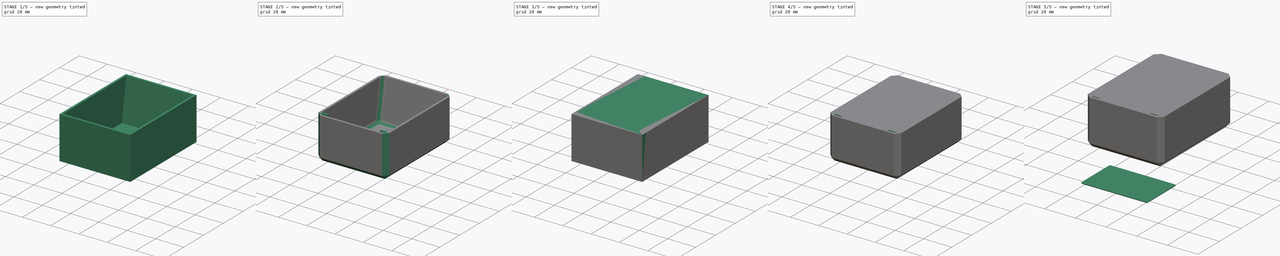
[diagram: build sequence overview — one tinted view per stage of 5, left to right]
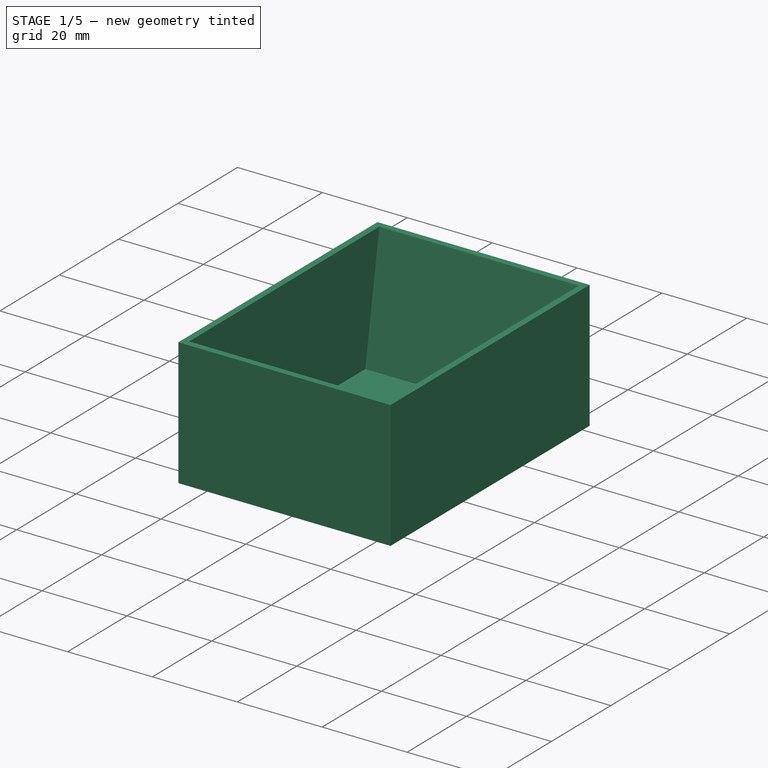
[diagram: stage 1 of 5 — iso view after this stage's code; geometry added in this stage tinted green]
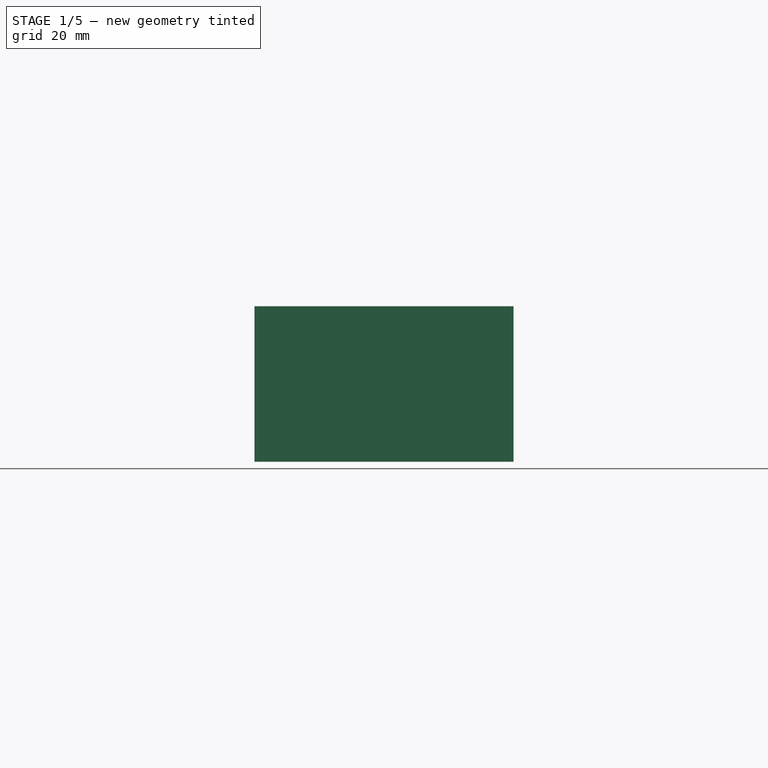
[diagram: stage 1 of 5 — front view after this stage's code; geometry added in this stage tinted green]
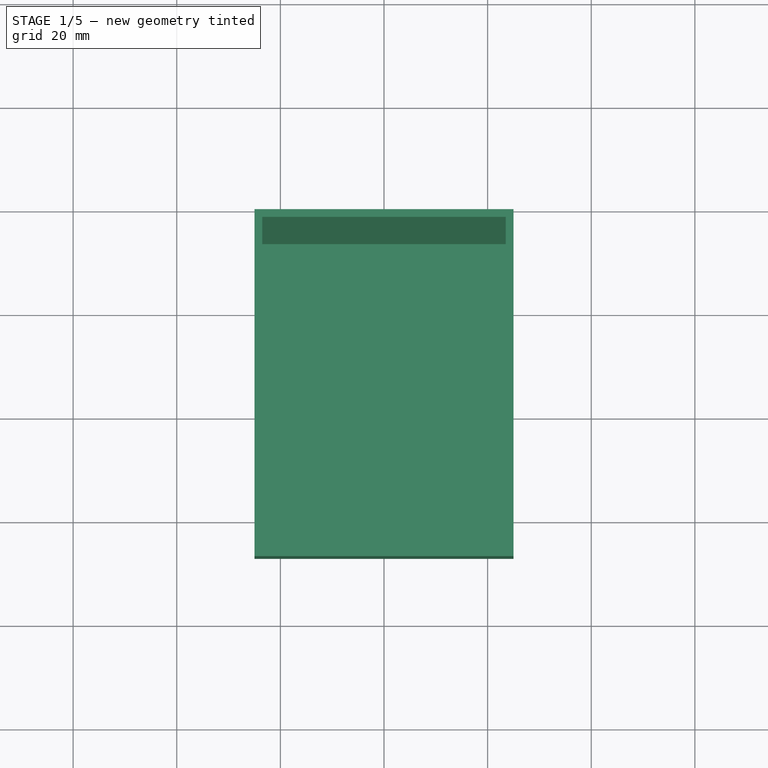
[diagram: stage 1 of 5 — top view after this stage's code; geometry added in this stage tinted green]
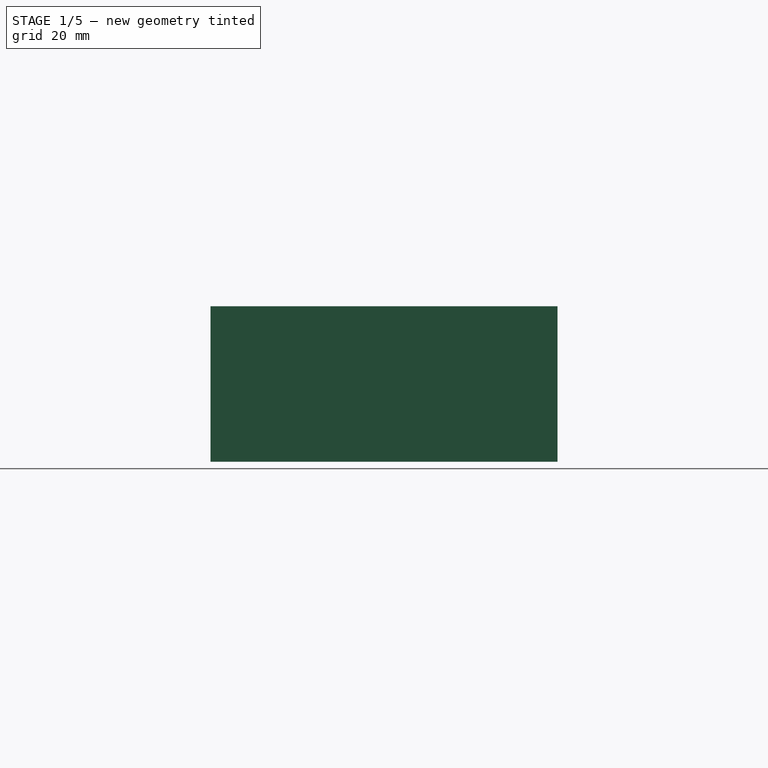
[diagram: stage 1 of 5 — right view after this stage's code; geometry added in this stage tinted green]
FCSTD DOCUMENT  (FreeCAD 0.21R33675 (Git))
Label: rack-part-tray
License: All rights reserved
LicenseURL: http://en.wikipedia.org/wiki/All_rights_reserved
objects: Sketcher::SketchObject×7, PartDesign::Pocket×4, Part::Feature×4, PartDesign::Pad×3, PartDesign::Chamfer×3, PartDesign::Fillet×2, PartDesign::Body×2, Part::Box×1, Part::Fillet×1, Part::Chamfer×1, PartDesign::FeatureBase×1
note: 41 computed .brp shape members not serialized (recipe doc carries the construction recipe); baked Part::Feature solids carry a one-line shape summary decoded from their .brp

FEATURE [Sketcher::SketchObject] Sketch
  FullyConstrained = true
  MapMode = 5
  Support = -> [XY_Plane]
  sketch-geometry (4):
    g0: LineSegment StartX=-25 StartY=0 StartZ=0 EndX=25 EndY=0 EndZ=0
    g1: LineSegment StartX=25 StartY=0 StartZ=0 EndX=25 EndY=-67 EndZ=0
    g2: LineSegment StartX=25 StartY=-67 StartZ=0 EndX=-25 EndY=-67 EndZ=0
    g3: LineSegment StartX=-25 StartY=-67 StartZ=0 EndX=-25 EndY=0 EndZ=0
  constraints (12):
    c: Coincident(g0,g1)
    c: Coincident(g1,g2)
    c: Coincident(g2,g3)
    c: Coincident(g3,g0)
    c: Horizontal(g0)
    c: Horizontal(g2)
    c: Vertical(g1)
    c: Vertical(g3)
    c: PointOnObject(g0,g-1)
    c: DistanceY(g3,g3) = 67
    c: DistanceX(g0,g0) = 50
    c: DistanceX(g0,g-1) = 25
FEATURE [PartDesign::Pad] Pad
  Direction = (0,0,1)
  Length = 30
  Length2 = 10
  Profile = -> Sketch
  ReferenceAxis = -> Sketch [N_Axis]
  Type = 0
FEATURE [Sketcher::SketchObject] Sketch001
  ExternalGeometry = -> [Pad]
  FullyConstrained = true
  MapMode = 5
  Placement = pos=(0,0,0) rot=(0.57735,0.57735,0.57735;2.0944rad)
  Support = -> [YZ_Plane]
  sketch-geometry (3):
    g0: LineSegment StartX=0 StartY=30 StartZ=0 EndX=-5 EndY=0 EndZ=0
    g1: LineSegment StartX=-5 StartY=0 StartZ=0 EndX=0 EndY=0 EndZ=0
    g2: LineSegment StartX=0 StartY=0 StartZ=0 EndX=0 EndY=30 EndZ=0
  constraints (8):
    c: PointOnObject(g0,g-2)
    c: PointOnObject(g0,g-1)
    c: Coincident(g0,g1)
    c: Coincident(g1,g-1)
    c: Coincident(g1,g2)
    c: Coincident(g2,g0)
    c: DistanceY(g0,g-3) = 0
    c: DistanceX(g1,g1) = 5
FEATURE [PartDesign::Pocket] Pocket
  BaseFeature = -> Pad
  Direction = (-1,2e-16,-3e-16)
  Length = 40
  Length2 = 5
  Midplane = true
  Profile = -> Sketch001
  ReferenceAxis = -> Sketch001 [N_Axis]
  Type = 0
FEATURE [Sketcher::SketchObject] Sketch002
  ExternalGeometry = -> [Pocket]
  FullyConstrained = true
  MapMode = 5
  Placement = pos=(0,0,0) rot=(0.57735,0.57735,0.57735;2.0944rad)
  Support = -> [YZ_Plane]
  sketch-geometry (4):
    g0: LineSegment StartX=-65.5 StartY=30 StartZ=0 EndX=-65.5 EndY=1.5 EndZ=0
    g1: LineSegment StartX=-65.5 StartY=1.5 StartZ=0 EndX=-6.25 EndY=1.5 EndZ=0
    g2: LineSegment StartX=-6.25 StartY=1.5 StartZ=0 EndX=-1.5 EndY=30 EndZ=0
    g3: LineSegment StartX=-1.5 StartY=30 StartZ=0 EndX=-65.5 EndY=30 EndZ=0
  constraints (12):
    c: PointOnObject(g0,g-6)
    c: Vertical(g0)
    c: Coincident(g0,g1)
    c: Horizontal(g1)
    c: Coincident(g1,g2)
    c: PointOnObject(g2,g-6)
    c: Coincident(g2,g3)
    c: Coincident(g3,g0)
    c: DistanceX(g-6,g0) = 1.5
    c: DistanceX(g2,g-6) = 1.5
    c: DistanceY(g-3,g0) = 1.5
    c: Parallel(g2,g-7)
FEATURE [PartDesign::Pocket] Pocket001
  BaseFeature = -> Pocket
  Direction = (-1,2e-16,-3e-16)
  Length = 47
  Length2 = 5
  Midplane = true
  Profile = -> Sketch002
  ReferenceAxis = -> Sketch002 [N_Axis]
  Type = 0
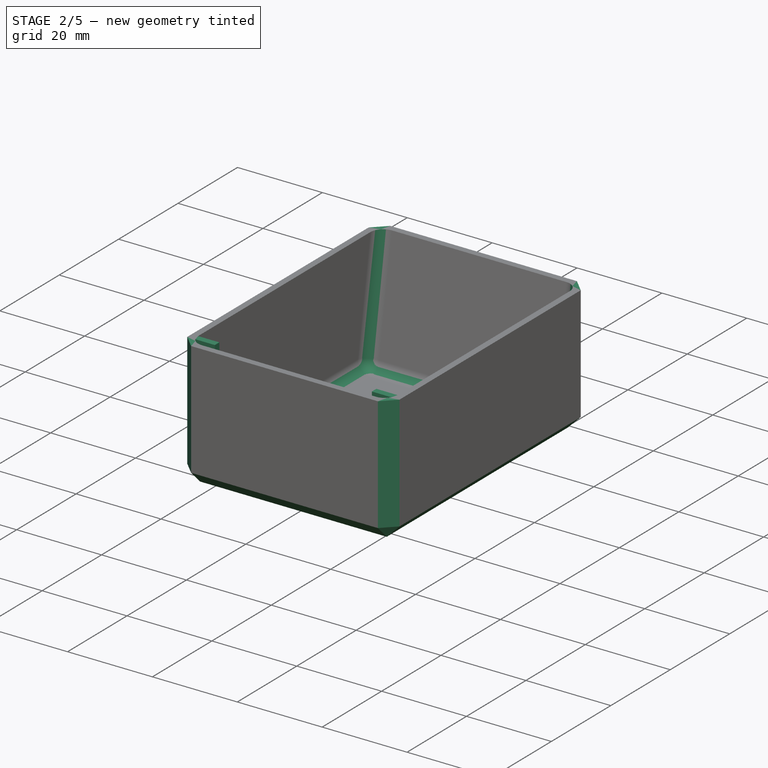
[diagram: stage 2 of 5 — iso view after this stage's code; geometry added in this stage tinted green]
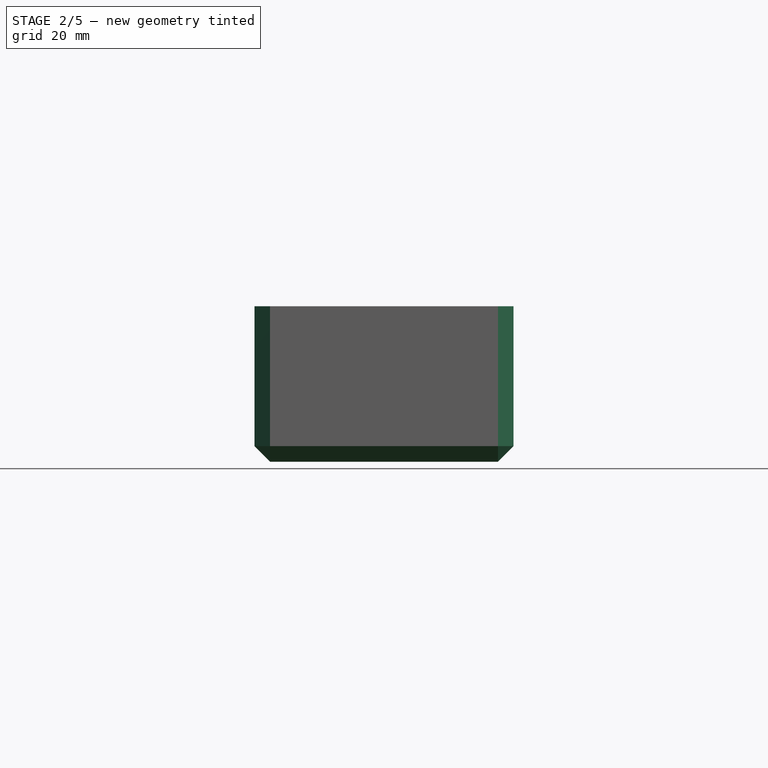
[diagram: stage 2 of 5 — front view after this stage's code; geometry added in this stage tinted green]
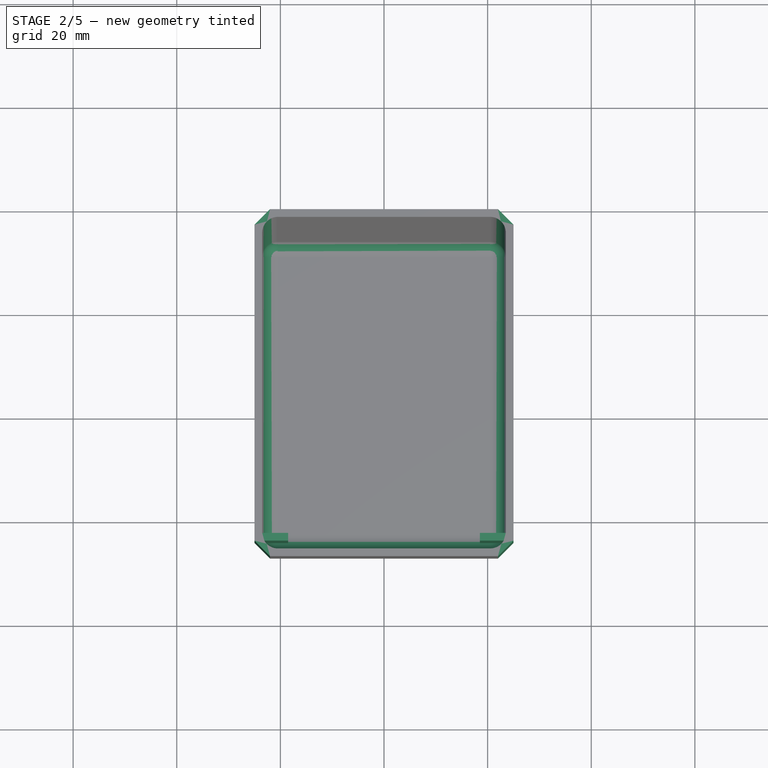
[diagram: stage 2 of 5 — top view after this stage's code; geometry added in this stage tinted green]
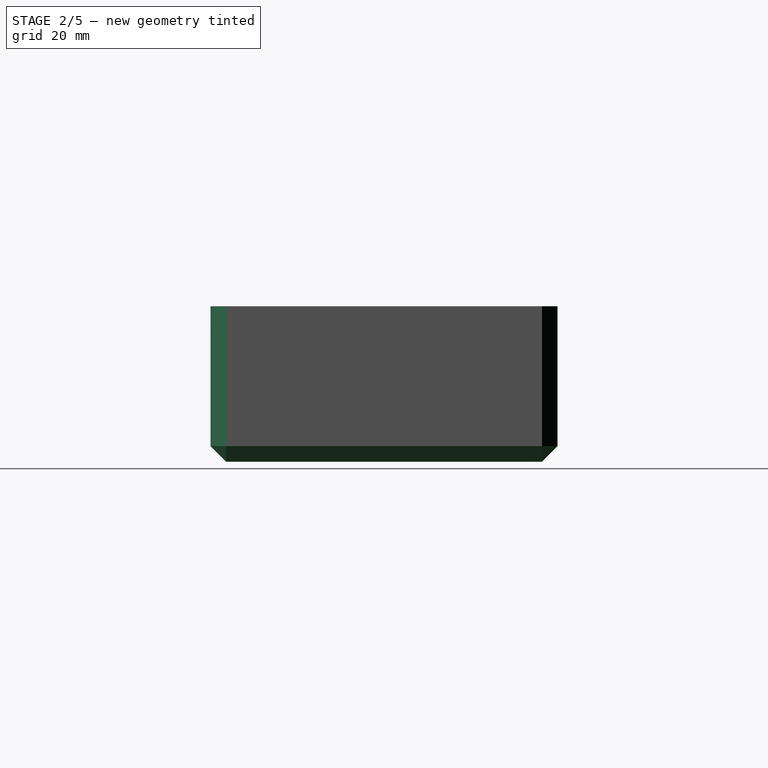
[diagram: stage 2 of 5 — right view after this stage's code; geometry added in this stage tinted green]
FEATURE [PartDesign::Fillet] Fillet
  Base = -> Pocket001 [Edge34,Edge28,Edge33,Edge30,Edge27,Edge32,Edge29,Edge31]
  BaseFeature = -> Pocket001
  Radius = 3
  SupportTransform = false
  UseAllEdges = false
FEATURE [Sketcher::SketchObject] Sketch003
  ExternalGeometry = -> [Fillet]
  FullyConstrained = true
  MapMode = 5
  Placement = pos=(0,0,30) rot=(0,0,1;0rad)
  Support = -> [Fillet]
  sketch-geometry (8):
    g0: LineSegment StartX=-23.5 StartY=-62.5 StartZ=0 EndX=-18.5 EndY=-62.5 EndZ=0
    g1: LineSegment StartX=-18.5 StartY=-62.5 StartZ=0 EndX=-18.5 EndY=-64 EndZ=0
    g2: LineSegment StartX=-18.5 StartY=-64 StartZ=0 EndX=-23.5 EndY=-64 EndZ=0
    g3: LineSegment StartX=-23.5 StartY=-64 StartZ=0 EndX=-23.5 EndY=-62.5 EndZ=0
    g4: LineSegment StartX=23.5 StartY=-64 StartZ=0 EndX=18.5 EndY=-64 EndZ=0
    g5: LineSegment StartX=18.5 StartY=-64 StartZ=0 EndX=18.5 EndY=-62.5 EndZ=0
    g6: LineSegment StartX=18.5 StartY=-62.5 StartZ=0 EndX=23.5 EndY=-62.5 EndZ=0
    g7: LineSegment StartX=23.5 StartY=-62.5 StartZ=0 EndX=23.5 EndY=-64 EndZ=0
  constraints (24):
    c: Coincident(g0,g1)
    c: Coincident(g1,g2)
    c: Coincident(g2,g3)
    c: Coincident(g3,g0)
    c: Horizontal(g0)
    c: Horizontal(g2)
    c: Vertical(g1)
    c: Vertical(g3)
    c: Coincident(g4,g5)
    c: Coincident(g5,g6)
    c: Coincident(g6,g7)
    c: Coincident(g7,g4)
    c: Horizontal(g4)
    c: Horizontal(g6)
    c: Vertical(g5)
    c: Vertical(g7)
    c: Equal(g0,g6)
    c: DistanceY(g5,g5) = 1.5
    c: Equal(g1,g5)
    c: Vertical(g2,g-3)
    c: Vertical(g4,g-4)
    c: DistanceX(g2,g2) = 5
    c: DistanceY(g-6,g1) = 1.5
    c: Horizontal(g1,g4)
FEATURE [PartDesign::Pad] Pad001
  BaseFeature = -> Fillet
  Direction = (0,0,1)
  Length = 10
  Length2 = 10
  Profile = -> Sketch003
  ReferenceAxis = -> Sketch003 [N_Axis]
  Refine = true
  Reversed = true
  Type = 3
  UpToFace = -> Fillet [Face27]
FEATURE [PartDesign::Chamfer] Chamfer
  Angle = 45
  Base = -> Pad001 [Edge13,Edge6,Edge5,Edge12,Edge15,Edge2,Edge11,Edge8,Edge1]
  BaseFeature = -> Pad001
  ChamferType = 0
  FlipDirection = false
  Size = 3
  Size2 = 1
  SupportTransform = false
  UseAllEdges = false
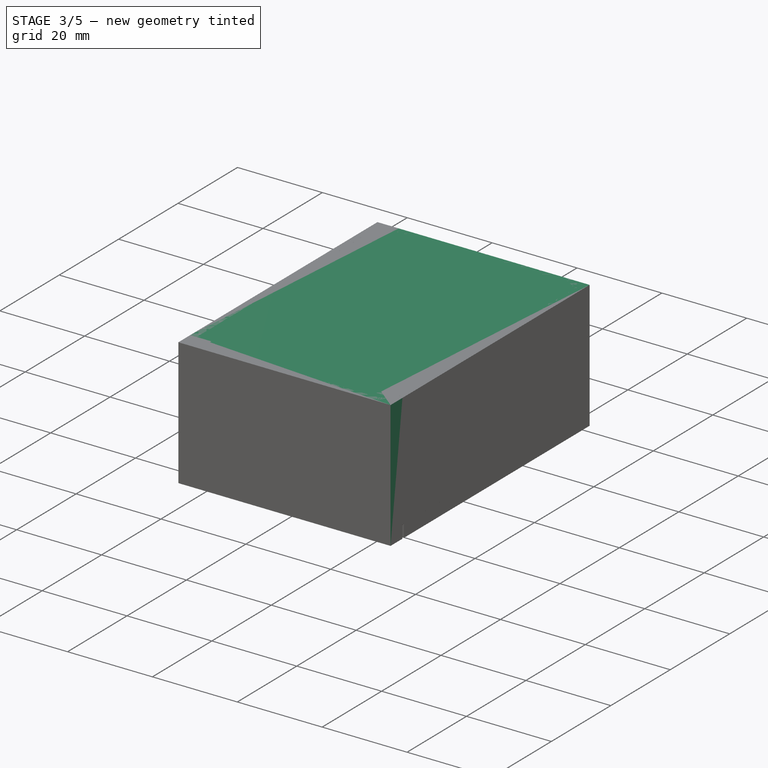
[diagram: stage 3 of 5 — iso view after this stage's code; geometry added in this stage tinted green]
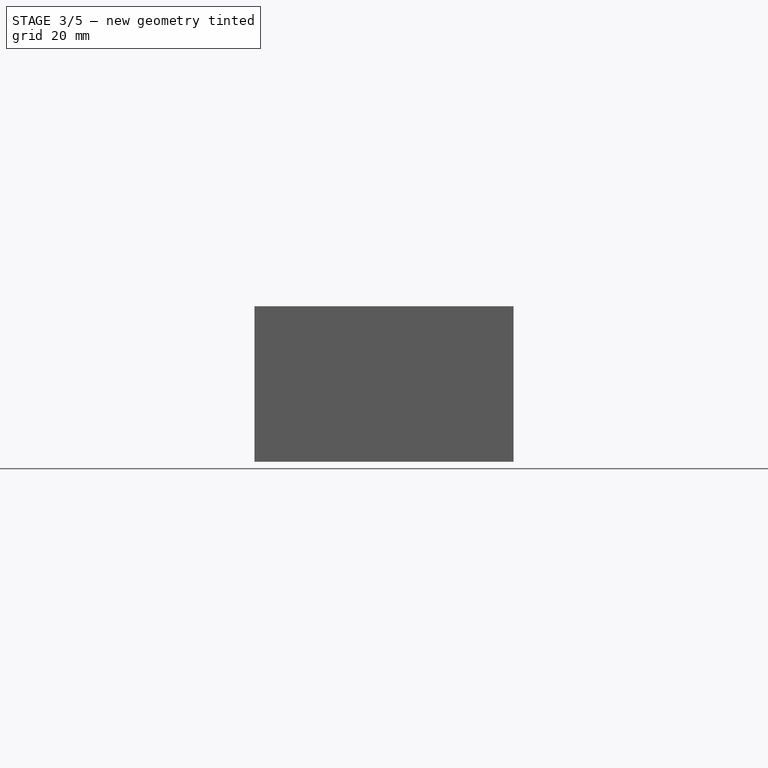
[diagram: stage 3 of 5 — front view after this stage's code; geometry added in this stage tinted green]
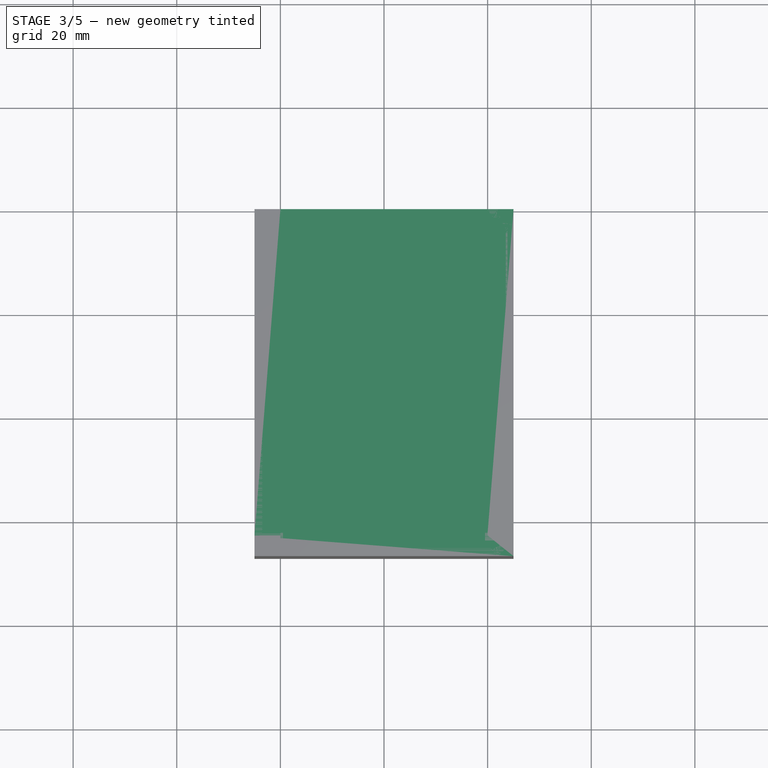
[diagram: stage 3 of 5 — top view after this stage's code; geometry added in this stage tinted green]
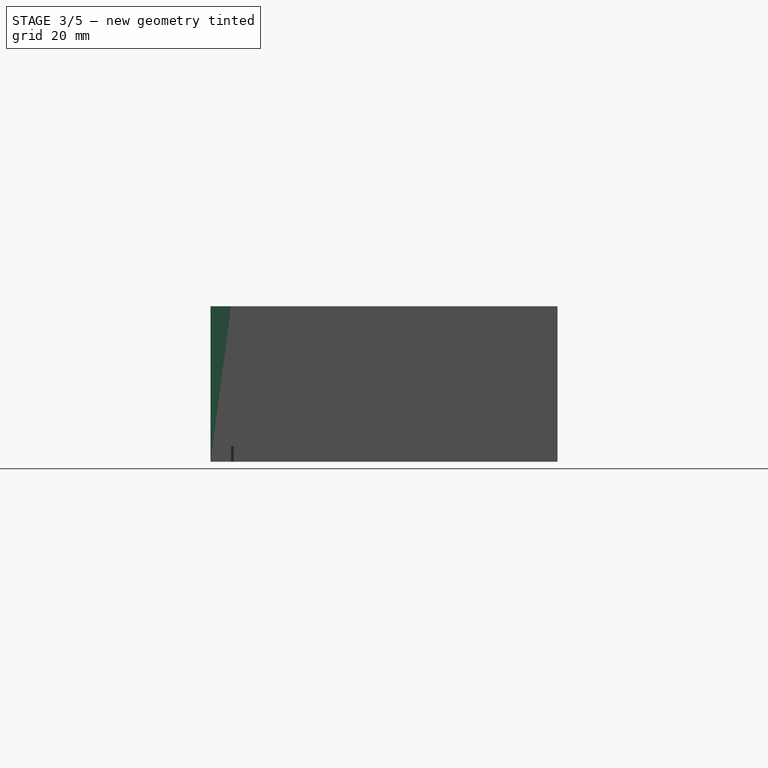
[diagram: stage 3 of 5 — right view after this stage's code; geometry added in this stage tinted green]
FEATURE [PartDesign::FeatureBase] Clone
  BaseFeature = -> Pocket
FEATURE [Sketcher::SketchObject] Sketch005
  ExternalGeometry = -> [Clone]
  FullyConstrained = true
  MapMode = 5
  Placement = pos=(0,0,30) rot=(0,0,1;0rad)
  Support = -> [Clone]
  sketch-geometry (8):
    g0: LineSegment StartX=-25 StartY=-63 StartZ=0 EndX=-20 EndY=-63 EndZ=0
    g1: LineSegment StartX=-20 StartY=-63 StartZ=0 EndX=-20 EndY=-63.5 EndZ=0
    g2: LineSegment StartX=-20 StartY=-63.5 StartZ=0 EndX=-25 EndY=-63.5 EndZ=0
    g3: LineSegment StartX=-25 StartY=-63.5 StartZ=0 EndX=-25 EndY=-63 EndZ=0
    g4: LineSegment StartX=25 StartY=-63 StartZ=0 EndX=20 EndY=-63 EndZ=0
    g5: LineSegment StartX=20 StartY=-63 StartZ=0 EndX=20 EndY=-62.5 EndZ=0
    g6: LineSegment StartX=20 StartY=-62.5 StartZ=0 EndX=25 EndY=-62.5 EndZ=0
    g7: LineSegment StartX=25 StartY=-62.5 StartZ=0 EndX=25 EndY=-63 EndZ=0
  constraints (24):
    c: Coincident(g0,g1)
    c: Coincident(g1,g2)
    c: Coincident(g2,g3)
    c: Coincident(g3,g0)
    c: Horizontal(g0)
    c: Horizontal(g2)
    c: Vertical(g1)
    c: Vertical(g3)
    c: PointOnObject(g0,g-3)
    c: Coincident(g4,g5)
    c: Coincident(g5,g6)
    c: Coincident(g6,g7)
    c: Coincident(g7,g4)
    c: Horizontal(g4)
    c: Horizontal(g6)
    c: Vertical(g5)
    c: Vertical(g7)
    c: PointOnObject(g4,g-4)
    c: Equal(g1,g5)
    c: Equal(g0,g4)
    c: DistanceY(g1,g1) = 0.5
    c: DistanceX(g0,g0) = 5
    c: DistanceY(g-3,g1) = 3.5
    c: Horizontal(g0,g4)
FEATURE [PartDesign::Pocket] Pocket003
  BaseFeature = -> Clone
  Direction = (0,0,-1)
  Length = 5
  Length2 = 5
  Profile = -> Sketch005
  ReferenceAxis = -> Sketch005 [N_Axis]
  Type = 1
FEATURE [PartDesign::Body] Body002  label="vase"
  Group = -> [Clone,Sketch005,Pocket003,Chamfer003,Sketch006,Pocket004,Chamfer004]
  Origin = -> Origin001
  Placement = pos=(-62.5,0,0) rot=(0,0,1;0rad)
  Tip = -> Chamfer004
FEATURE [Part::Feature] Pocket005
  Placement = pos=(-123.5,0,0) rot=(0,0,1;0rad)
  shape: bbox 50 x 67 x 30 mm, 41 faces (baked)
FEATURE [Part::Feature] Pocket006
  Placement = pos=(-189.5,0,0) rot=(0,0,1;0rad)
  shape: bbox 50 x 33.5 x 30 mm, 41 faces (baked)
FEATURE [Sketcher::SketchObject] Sketch007
  ExternalGeometry = -> [Chamfer]
  FullyConstrained = true
  MapMode = 5
  Placement = pos=(-4e-16,3e-16,1.5) rot=(0,0,1;0rad)
  Support = -> [Chamfer]
  sketch-geometry (4):
    g0: LineSegment StartX=-8.5 StartY=-62.5 StartZ=0 EndX=8.5 EndY=-62.5 EndZ=0
    g1: LineSegment StartX=8.5 StartY=-62.5 StartZ=0 EndX=8.5 EndY=-64 EndZ=0
    g2: LineSegment StartX=8.5 StartY=-64 StartZ=0 EndX=-8.5 EndY=-64 EndZ=0
    g3: LineSegment StartX=-8.5 StartY=-64 StartZ=0 EndX=-8.5 EndY=-62.5 EndZ=0
  constraints (12):
    c: Coincident(g0,g1)
    c: Coincident(g1,g2)
    c: Coincident(g2,g3)
    c: Coincident(g3,g0)
    c: Horizontal(g0)
    c: Horizontal(g2)
    c: Vertical(g1)
    c: Vertical(g3)
    c: Horizontal(g-3,g0)
    c: Horizontal(g1,g-5)
    c: DistanceX(g-3,g0) = 10
    c: DistanceX(g0,g-4) = 10
FEATURE [PartDesign::Pad] Pad002
  BaseFeature = -> Chamfer
  Direction = (-3e-16,2e-16,1)
  Length = 5
  Length2 = 10
  Profile = -> Sketch007
  ReferenceAxis = -> Sketch007 [N_Axis]
  Type = 0
FEATURE [PartDesign::Fillet] Fillet002
  Base = -> Pad002 [Edge17,Edge120,Edge116,Edge23]
  BaseFeature = -> Pad002
  Radius = 1
  SupportTransform = false
  UseAllEdges = false
FEATURE [PartDesign::Body] Body  label="solid"
  Group = -> [Sketch,Pad,Sketch001,Pocket,Sketch002,Pocket001,Fillet,Sketch003,Pad001,Chamfer,Sketch007,Pad002,Fillet002]
  Origin = -> Origin
  Tip = -> Fillet002
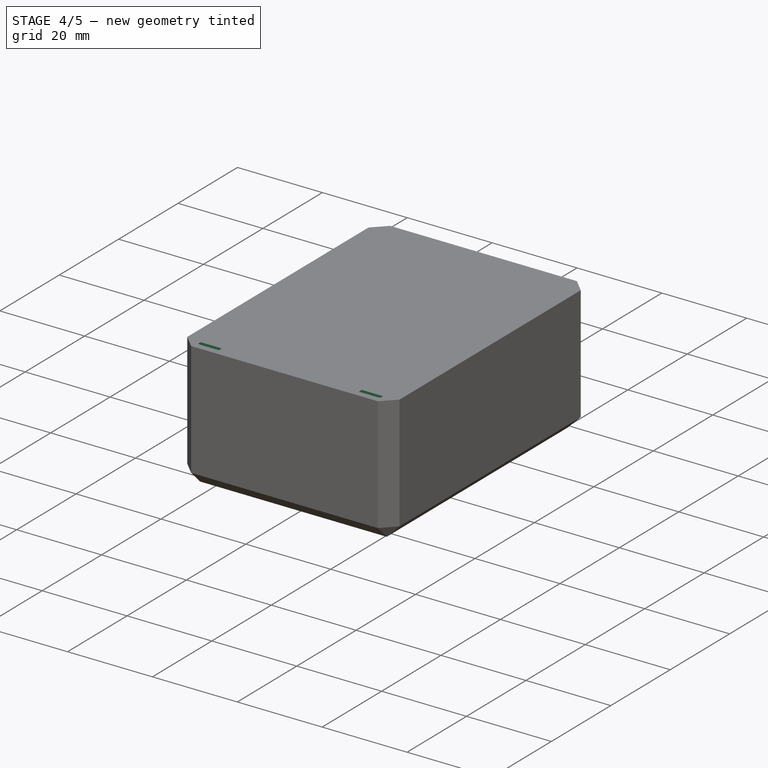
[diagram: stage 4 of 5 — iso view after this stage's code; geometry added in this stage tinted green]
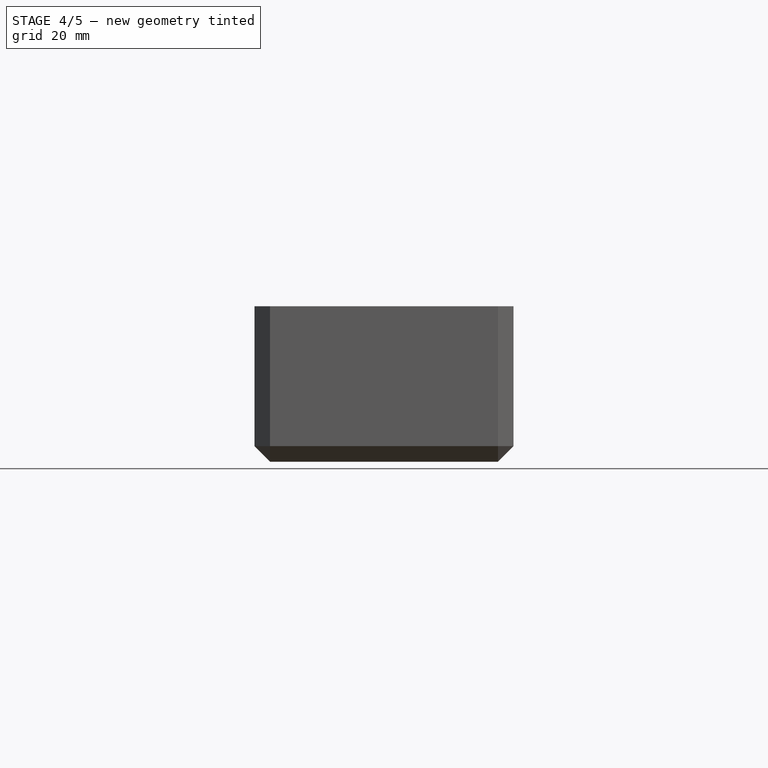
[diagram: stage 4 of 5 — front view after this stage's code; geometry added in this stage tinted green]
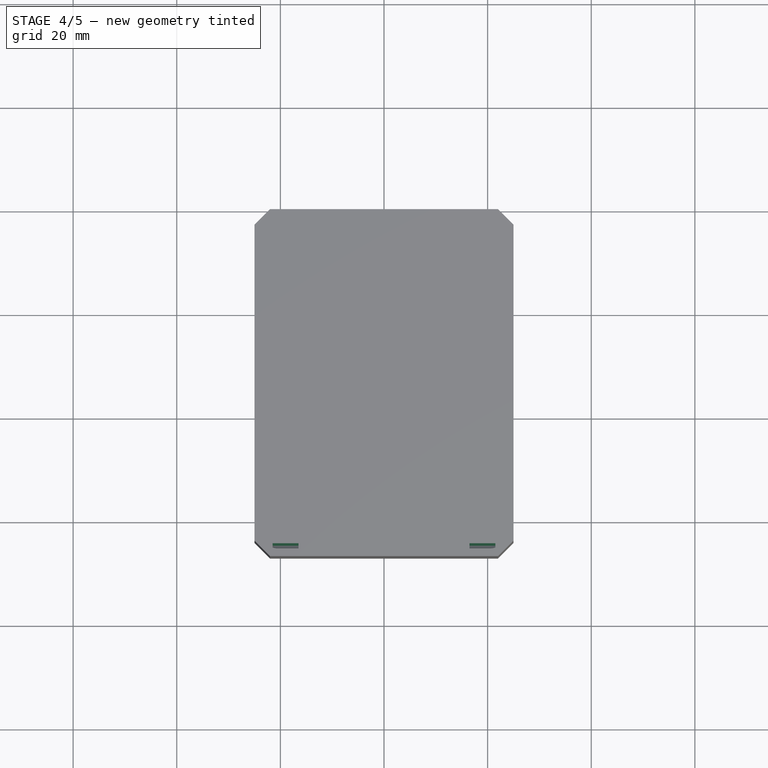
[diagram: stage 4 of 5 — top view after this stage's code; geometry added in this stage tinted green]
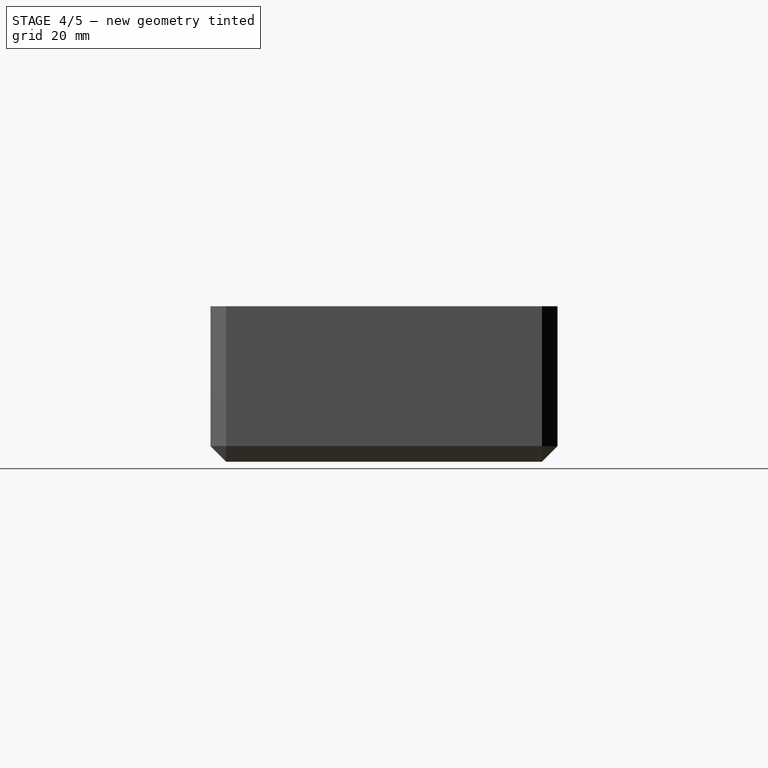
[diagram: stage 4 of 5 — right view after this stage's code; geometry added in this stage tinted green]
FEATURE [PartDesign::Chamfer] Chamfer003
  Angle = 45
  Base = -> Pocket003 [Edge4,Edge19,Edge15,Edge43,Edge14,Edge42,Edge13,Edge9,Edge37,Edge8,Edge1]
  BaseFeature = -> Pocket003
  ChamferType = 0
  FlipDirection = false
  Size = 3
  Size2 = 1
  SupportTransform = false
  UseAllEdges = false
FEATURE [Sketcher::SketchObject] Sketch006
  ExternalGeometry = -> [Chamfer003]
  FullyConstrained = true
  MapMode = 5
  Placement = pos=(0,0,30) rot=(0,0,1;0rad)
  Support = -> [Chamfer003]
  sketch-geometry (8):
    g0: LineSegment StartX=-21.5 StartY=-67 StartZ=0 EndX=-16.5 EndY=-67 EndZ=0
    g1: LineSegment StartX=-16.5 StartY=-67 StartZ=0 EndX=-16.5 EndY=-64.5 EndZ=0
    g2: LineSegment StartX=-16.5 StartY=-64.5 StartZ=0 EndX=-21.5 EndY=-64.5 EndZ=0
    g3: LineSegment StartX=-21.5 StartY=-64.5 StartZ=0 EndX=-21.5 EndY=-67 EndZ=0
    g4: LineSegment StartX=21.5 StartY=-67 StartZ=0 EndX=16.5 EndY=-67 EndZ=0
    g5: LineSegment StartX=16.5 StartY=-67 StartZ=0 EndX=16.5 EndY=-64.5 EndZ=0
    g6: LineSegment StartX=16.5 StartY=-64.5 StartZ=0 EndX=21.5 EndY=-64.5 EndZ=0
    g7: LineSegment StartX=21.5 StartY=-64.5 StartZ=0 EndX=21.5 EndY=-67 EndZ=0
  constraints (24):
    c: Coincident(g0,g1)
    c: Coincident(g1,g2)
    c: Coincident(g2,g3)
    c: Coincident(g3,g0)
    c: Horizontal(g0)
    c: Horizontal(g2)
    c: Vertical(g1)
    c: Vertical(g3)
    c: PointOnObject(g0,g-5)
    c: Coincident(g4,g5)
    c: Coincident(g5,g6)
    c: Coincident(g6,g7)
    c: Coincident(g7,g4)
    c: Horizontal(g4)
    c: Horizontal(g6)
    c: Vertical(g5)
    c: Vertical(g7)
    c: PointOnObject(g4,g-5)
    c: Equal(g3,g5)
    c: Equal(g6,g2)
    c: DistanceY(g1,g1) = 2.5
    c: DistanceX(g-5,g0) = 0.5
    c: DistanceX(g4,g-5) = 0.5
    c: DistanceX(g6,g6) = 5
FEATURE [PartDesign::Pocket] Pocket004
  BaseFeature = -> Chamfer003
  Direction = (0,0,-1)
  Length = 5
  Length2 = 5
  Profile = -> Sketch006
  ReferenceAxis = -> Sketch006 [N_Axis]
  Type = 1
FEATURE [PartDesign::Chamfer] Chamfer004
  Angle = 45
  Base = -> Pocket004 [Edge67,Edge69]
  BaseFeature = -> Pocket004
  ChamferType = 0
  FlipDirection = false
  Size = 1
  Size2 = 1
  SupportTransform = false
  UseAllEdges = false
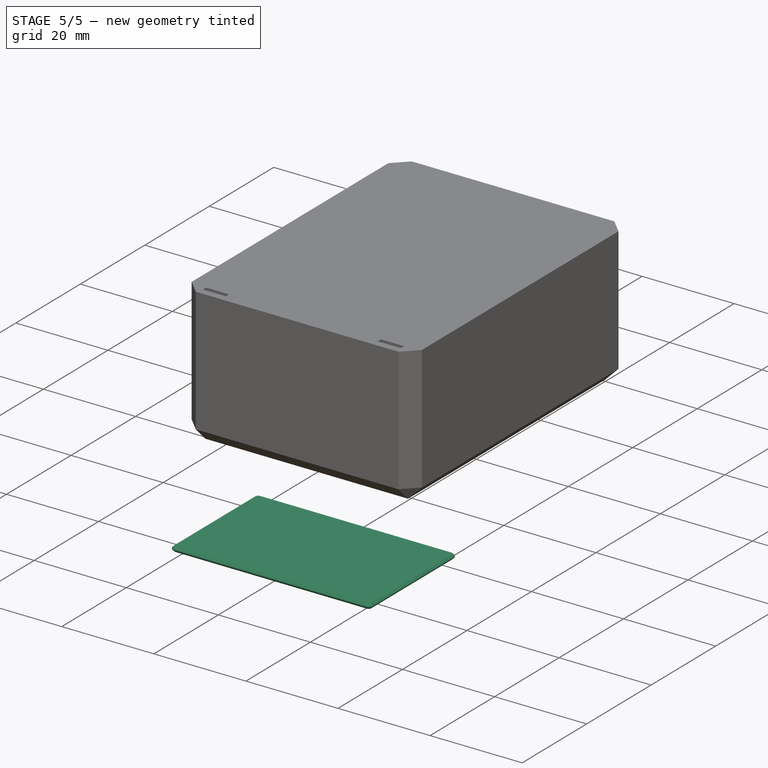
[diagram: stage 5 of 5 — iso view after this stage's code; geometry added in this stage tinted green]
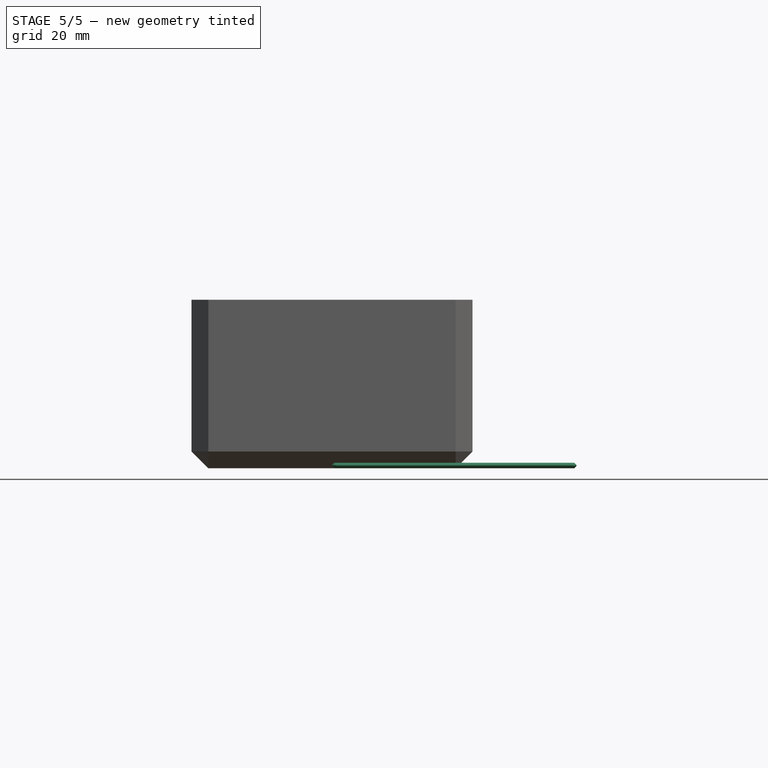
[diagram: stage 5 of 5 — front view after this stage's code; geometry added in this stage tinted green]
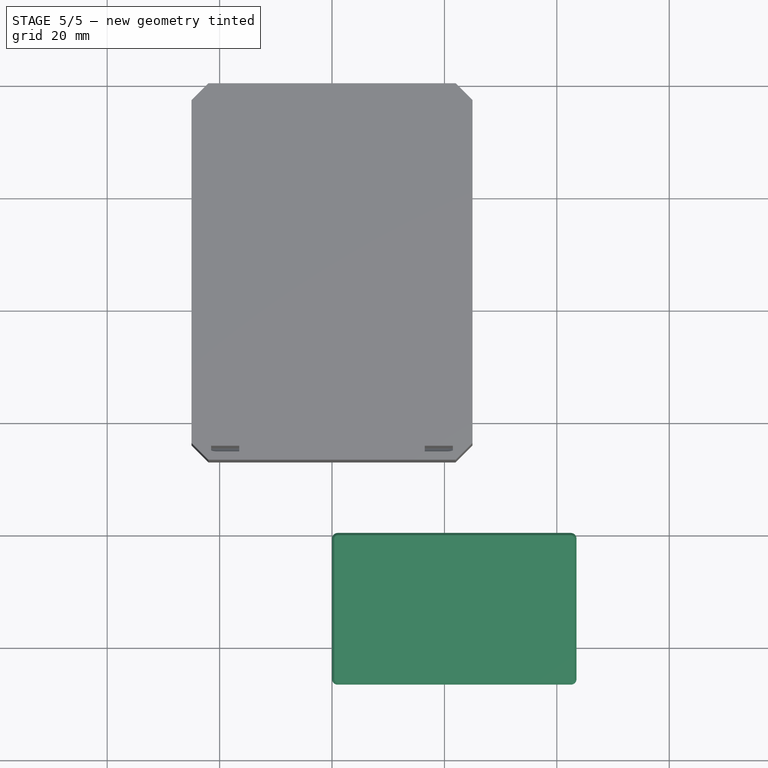
[diagram: stage 5 of 5 — top view after this stage's code; geometry added in this stage tinted green]
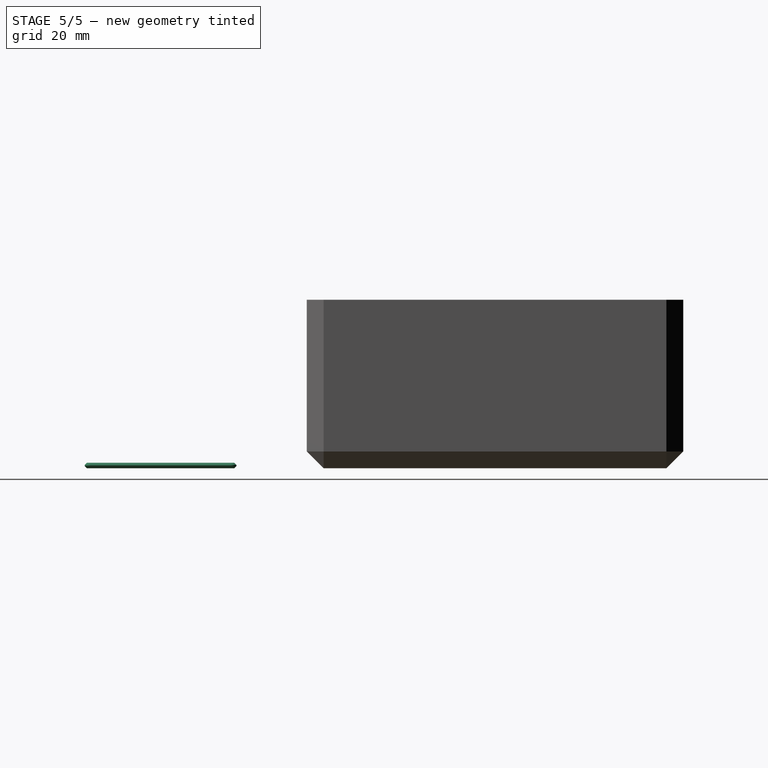
[diagram: stage 5 of 5 — right view after this stage's code; geometry added in this stage tinted green]
FEATURE [Part::Feature] Body001
  Placement = pos=(58.5,0,0) rot=(0,0,1;0rad)
  shape: bbox 50 x 67 x 30.49 mm, 50 faces (baked)
FEATURE [Part::Feature] Chamfer001
  Placement = pos=(117.5,0,0) rot=(0,0,1;0rad)
  shape: bbox 50 x 33.5 x 30.49 mm, 50 faces (baked)
FEATURE [Part::Box] Box  label="Cube"
  AttacherType = Attacher::AttachEngine3D
  Height = 1
  Length = 43.5
  Placement = pos=(0,24,0) rot=(0,0,1;0rad)
  Width = 27
FEATURE [Part::Fillet] Fillet001
  Base = -> Box
  Edges = 4 edges r=1: [Edge1,Edge3,Edge5,Edge7]
FEATURE [Part::Chamfer] Chamfer002
  Base = -> Fillet001
  Edges = 16 edges r=0.4: [Edge1,Edge3,Edge5,Edge6,Edge7,Edge8,Edge9,Edge10,Edge11,Edge12,Edge14,Edge16,Edge17,Edge18,Edge19,Edge20]
  Placement = pos=(0,-130.5,0) rot=(0,0,1;0rad)
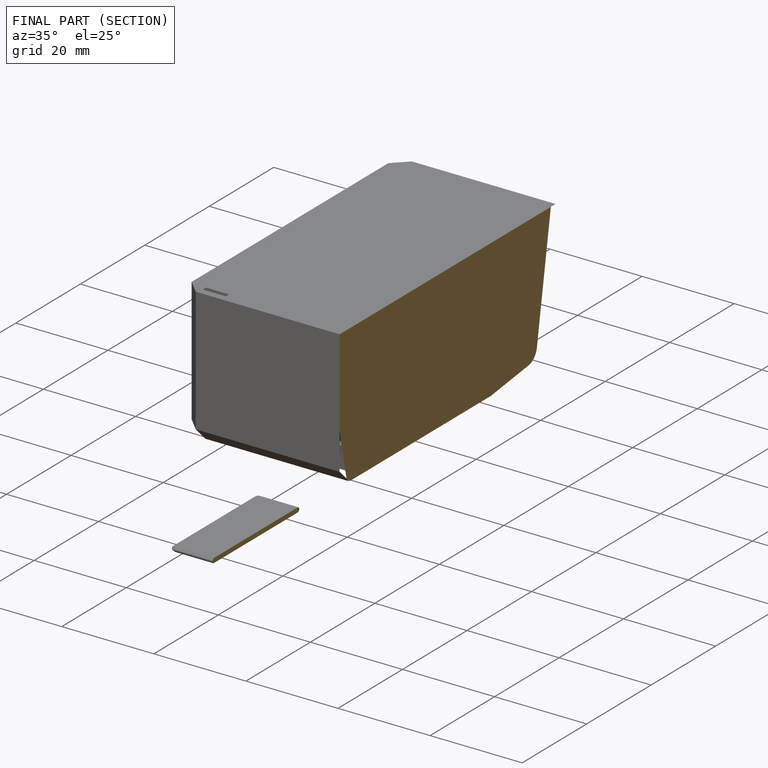
[diagram: finished part — half-section view (interior)]
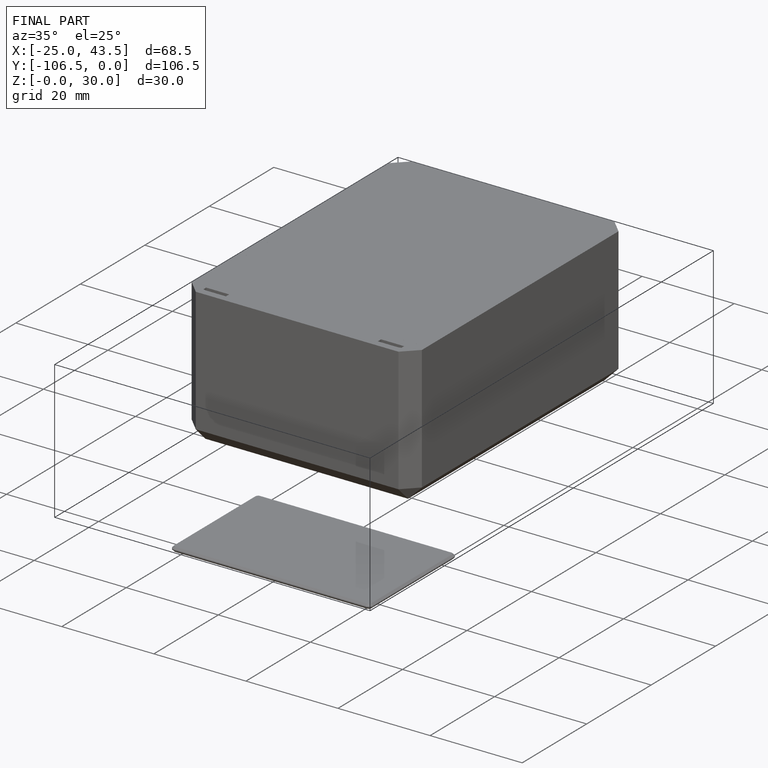
[diagram: finished part — iso view with bounding-box wireframe]
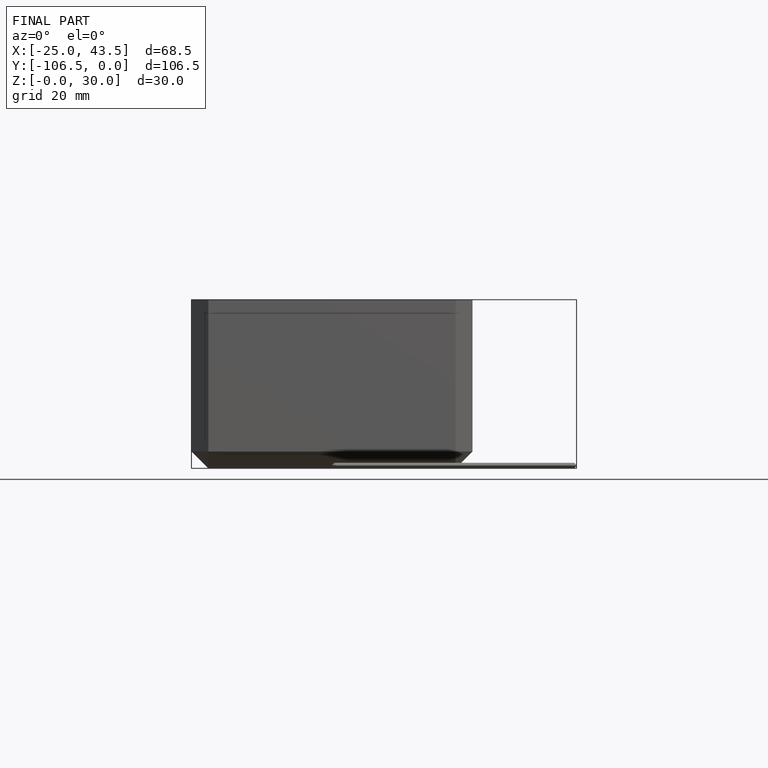
[diagram: finished part — front view with bounding-box wireframe]
